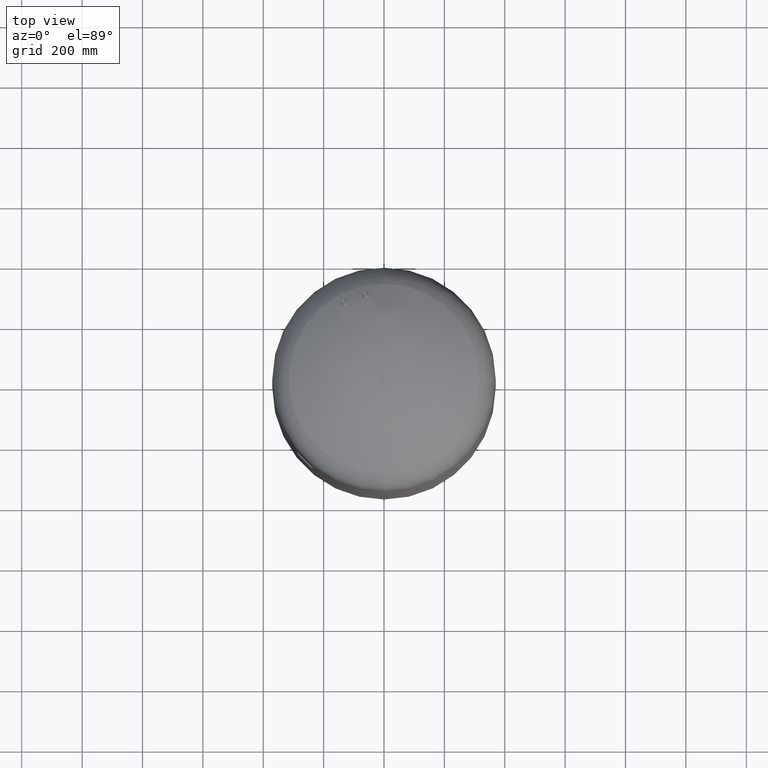
[diagram: clean part render]
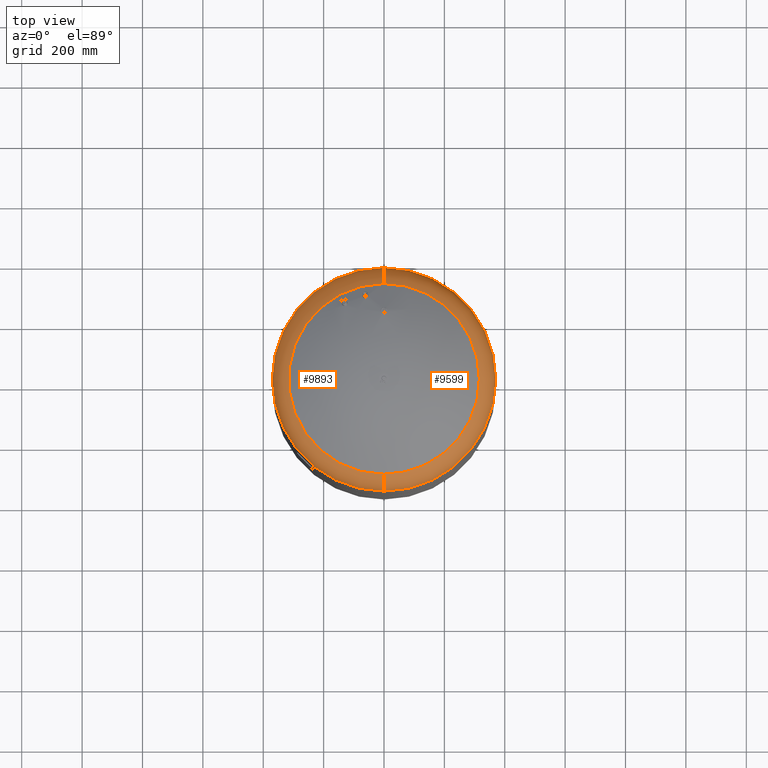
[diagram: same view with one multi-face feature highlighted, each face labeled with its STEP entity id]
A machine part, top view. The highlighted faces form ONE feature: a constant-radius fillet chain: 2 tangent blend faces with common blend radius 115.5 mm. The faces share edges in the B-rep.
Their STEP definitions:
[1] entity #9893 (Torus):
#9521=CARTESIAN_POINT('',(-370.0,9.062237E-014,1961.206120388130600));
#9522=VERTEX_POINT('',#9521);
#9529=CARTESIAN_POINT('',(6.750178E-014,370.0,1961.206120388130300));
#9530=VERTEX_POINT('',#9529);
#9531=CARTESIAN_POINT('',(-2.312058E-014,3.155444E-030,1961.206120388130600));
#9532=DIRECTION('',(0.0,0.0,-1.0));
#9533=DIRECTION('',(1.0,0.0,0.0));
#9534=AXIS2_PLACEMENT_3D('',#9531,#9532,#9533);
#9535=CIRCLE('',#9534,370.0);
#9536=EDGE_CURVE('',#9522,#9530,#9535,.T.);
#9553=CARTESIAN_POINT('',(-6.843251E-014,-370.0,1961.206120388130300));
#9554=VERTEX_POINT('',#9553);
#9555=CARTESIAN_POINT('',(-4.983290E-014,-315.931034482758610,2059.014494274920300));
#9556=VERTEX_POINT('',#9555);
#9557=CARTESIAN_POINT('',(-5.428784E-014,-254.500000000000030,1961.206120388130300));
#9558=DIRECTION('',(-1.0,0.0,0.0));
#9559=DIRECTION('',(0.0,-1.0,0.0));
#9560=AXIS2_PLACEMENT_3D('',#9557,#9558,#9559);
#9561=CIRCLE('',#9560,115.500000000000000);
#9562=EDGE_CURVE('',#9554,#9556,#9561,.T.);
#9572=CARTESIAN_POINT('',(6.623700E-014,315.931034482758610,2059.014494274920300));
#9573=VERTEX_POINT('',#9572);
#9574=CARTESIAN_POINT('',(3.921291E-014,254.500000000000030,1961.206120388130300));
#9575=DIRECTION('',(1.0,0.0,0.0));
#9576=DIRECTION('',(0.0,1.0,0.0));
#9577=AXIS2_PLACEMENT_3D('',#9574,#9575,#9576);
#9578=CIRCLE('',#9577,115.500000000000000);
#9579=EDGE_CURVE('',#9530,#9573,#9578,.T.);
#9653=CARTESIAN_POINT('',(-1.114251E-014,1.577722E-030,2059.014494274920300));
#9654=DIRECTION('',(0.0,0.0,-1.0));
#9655=DIRECTION('',(1.0,0.0,0.0));
#9656=AXIS2_PLACEMENT_3D('',#9653,#9654,#9655);
#9657=CIRCLE('',#9656,315.931034482758610);
#9658=EDGE_CURVE('',#9556,#9573,#9657,.T.);
#9875=CARTESIAN_POINT('',(-2.312058E-014,0.0,1961.206120388130300));
#9876=DIRECTION('',(-1.224647E-016,2.465190E-032,-1.0));
#9877=DIRECTION('',(0.0,-1.0,0.0));
#9878=AXIS2_PLACEMENT_3D('',#9875,#9876,#9877);
#9879=TOROIDAL_SURFACE('',#9878,254.500000000000030,115.500000000000000);
#9880=ORIENTED_EDGE('',*,*,#9562,.T.);
#9881=ORIENTED_EDGE('',*,*,#9658,.T.);
#9882=ORIENTED_EDGE('',*,*,#9579,.F.);
#9883=ORIENTED_EDGE('',*,*,#9536,.F.);
#9884=CARTESIAN_POINT('',(-2.312058E-014,3.155444E-030,1961.206120388130600));
#9885=DIRECTION('',(0.0,0.0,-1.0));
#9886=DIRECTION('',(1.0,0.0,0.0));
#9887=AXIS2_PLACEMENT_3D('',#9884,#9885,#9886);
#9888=CIRCLE('',#9887,370.0);
#9889=EDGE_CURVE('',#9554,#9522,#9888,.T.);
#9890=ORIENTED_EDGE('',*,*,#9889,.F.);
#9891=EDGE_LOOP('',(#9880,#9881,#9882,#9883,#9890));
#9892=FACE_OUTER_BOUND('',#9891,.T.);
#9893=ADVANCED_FACE('',(#9892),#9879,.T.);
[2] entity #9599 (Torus):
#9504=CARTESIAN_POINT('',(370.0,-4.531193E-014,1961.206120388130300));
#9505=VERTEX_POINT('',#9504);
#9529=CARTESIAN_POINT('',(6.750178E-014,370.0,1961.206120388130300));
#9530=VERTEX_POINT('',#9529);
#9538=CARTESIAN_POINT('',(-2.312058E-014,3.155444E-030,1961.206120388130600));
#9539=DIRECTION('',(0.0,0.0,-1.0));
#9540=DIRECTION('',(1.0,0.0,0.0));
#9541=AXIS2_PLACEMENT_3D('',#9538,#9539,#9540);
#9542=CIRCLE('',#9541,370.0);
#9543=EDGE_CURVE('',#9530,#9505,#9542,.T.);
#9548=CARTESIAN_POINT('',(-2.312058E-014,0.0,1961.206120388130300));
#9549=DIRECTION('',(-1.224647E-016,2.465190E-032,-1.0));
#9550=DIRECTION('',(0.0,-1.0,0.0));
#9551=AXIS2_PLACEMENT_3D('',#9548,#9549,#9550);
#9552=TOROIDAL_SURFACE('',#9551,254.500000000000030,115.500000000000000);
#9553=CARTESIAN_POINT('',(-6.843251E-014,-370.0,1961.206120388130300));
#9554=VERTEX_POINT('',#9553);
#9555=CARTESIAN_POINT('',(-4.983290E-014,-315.931034482758610,2059.014494274920300));
#9556=VERTEX_POINT('',#9555);
#9557=CARTESIAN_POINT('',(-5.428784E-014,-254.500000000000030,1961.206120388130300));
#9558=DIRECTION('',(-1.0,0.0,0.0));
#9559=DIRECTION('',(0.0,-1.0,0.0));
#9560=AXIS2_PLACEMENT_3D('',#9557,#9558,#9559);
#9561=CIRCLE('',#9560,115.500000000000000);
#9562=EDGE_CURVE('',#9554,#9556,#9561,.T.);
#9563=ORIENTED_EDGE('',*,*,#9562,.F.);
#9564=CARTESIAN_POINT('',(-2.312058E-014,3.155444E-030,1961.206120388130600));
#9565=DIRECTION('',(0.0,0.0,-1.0));
#9566=DIRECTION('',(1.0,0.0,0.0));
#9567=AXIS2_PLACEMENT_3D('',#9564,#9565,#9566);
#9568=CIRCLE('',#9567,370.0);
#9569=EDGE_CURVE('',#9505,#9554,#9568,.T.);
#9570=ORIENTED_EDGE('',*,*,#9569,.F.);
#9571=ORIENTED_EDGE('',*,*,#9543,.F.);
#9572=CARTESIAN_POINT('',(6.623700E-014,315.931034482758610,2059.014494274920300));
#9573=VERTEX_POINT('',#9572);
#9574=CARTESIAN_POINT('',(3.921291E-014,254.500000000000030,1961.206120388130300));
#9575=DIRECTION('',(1.0,0.0,0.0));
#9576=DIRECTION('',(0.0,1.0,0.0));
#9577=AXIS2_PLACEMENT_3D('',#9574,#9575,#9576);
#9578=CIRCLE('',#9577,115.500000000000000);
#9579=EDGE_CURVE('',#9530,#9573,#9578,.T.);
#9580=ORIENTED_EDGE('',*,*,#9579,.T.);
#9581=CARTESIAN_POINT('',(315.931034482758610,-3.869039E-014,2059.014494274920300));
#9582=VERTEX_POINT('',#9581);
#9583=CARTESIAN_POINT('',(-1.114251E-014,1.577722E-030,2059.014494274920300));
#9584=DIRECTION('',(0.0,0.0,-1.0));
#9585=DIRECTION('',(1.0,0.0,0.0));
#9586=AXIS2_PLACEMENT_3D('',#9583,#9584,#9585);
#9587=CIRCLE('',#9586,315.931034482758610);
#9588=EDGE_CURVE('',#9573,#9582,#9587,.T.);
#9589=ORIENTED_EDGE('',*,*,#9588,.T.);
#9590=CARTESIAN_POINT('',(-1.114251E-014,1.577722E-030,2059.014494274920300));
#9591=DIRECTION('',(0.0,0.0,-1.0));
#9592=DIRECTION('',(1.0,0.0,0.0));
#9593=AXIS2_PLACEMENT_3D('',#9590,#9591,#9592);
#9594=CIRCLE('',#9593,315.931034482758610);
#9595=EDGE_CURVE('',#9582,#9556,#9594,.T.);
#9596=ORIENTED_EDGE('',*,*,#9595,.T.);
#9597=EDGE_LOOP('',(#9563,#9570,#9571,#9580,#9589,#9596));
#9598=FACE_OUTER_BOUND('',#9597,.T.);
#9599=ADVANCED_FACE('',(#9598),#9552,.T.);